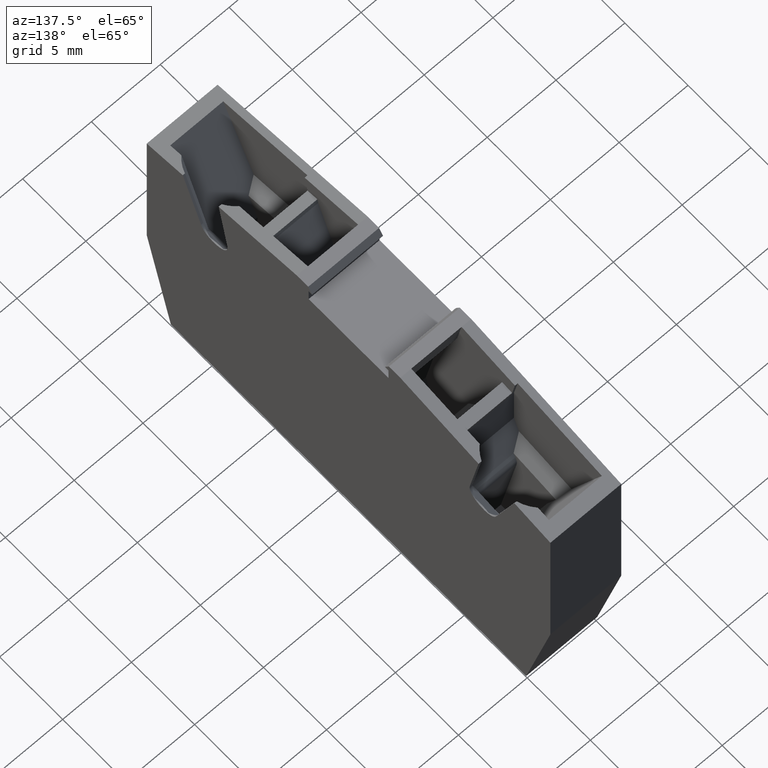
[diagram: clean part render]
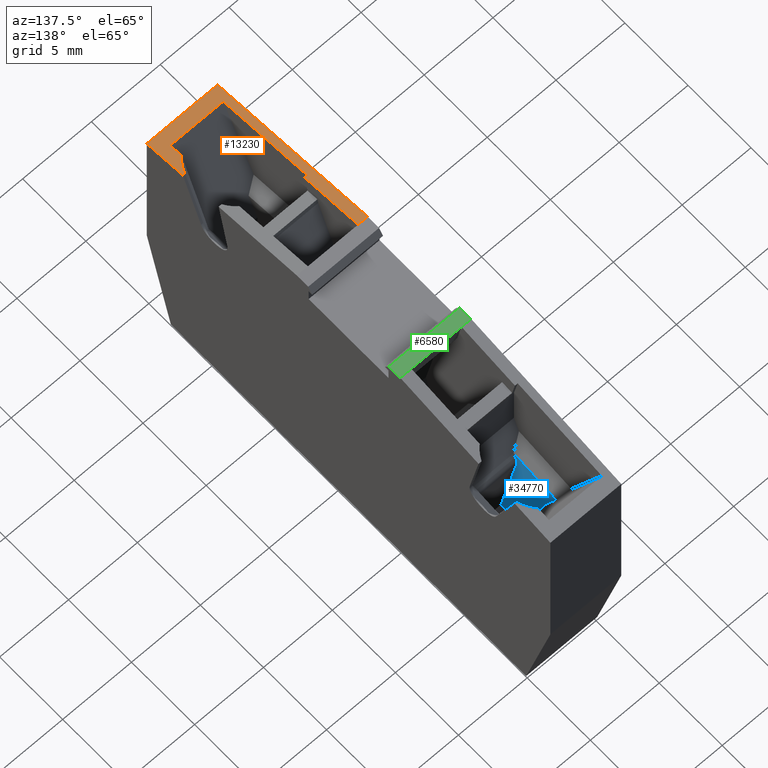
[diagram: same view with three faces highlighted in distinct colors, each labeled with its STEP entity id]
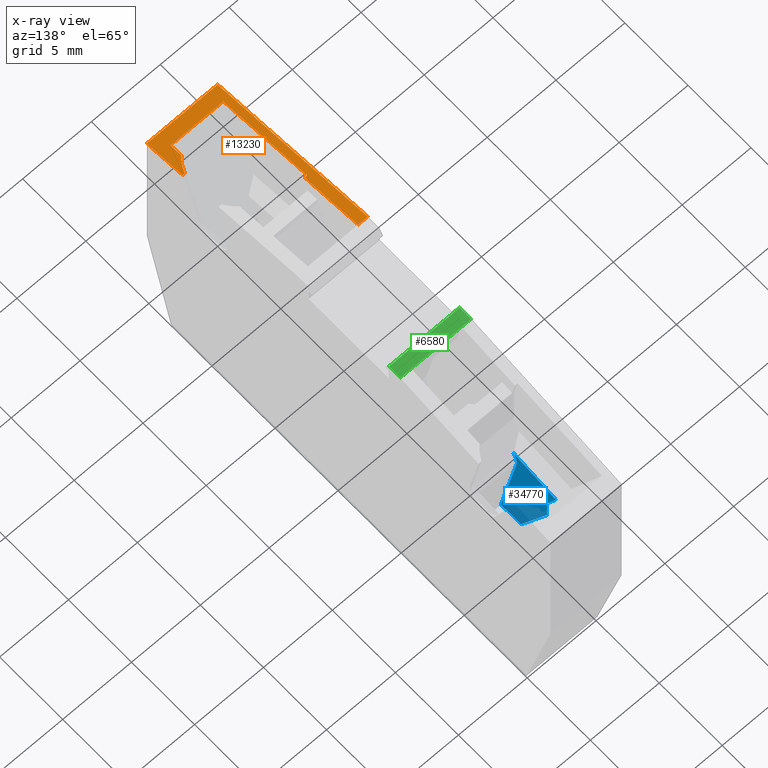
[diagram: x-ray of the same camera — body ghosted, the three highlighted faces saturated]
A machine part, auxiliary view with three faces highlighted in distinct colors.
The next image is the same camera in x-ray (body ghosted, the three faces saturated) — at least one of them is partly hidden behind the body in this view.
Their STEP definitions:

[orange] entity #13230 — the highlighted planar face has unit normal (0, -0.1736, 0.9848).
#200=CARTESIAN_POINT('',(-11.1873617196465,126.685982143697,55.05));
#210=VERTEX_POINT('',#200);
#240=CARTESIAN_POINT('',(-6.72796270864294,75.7148182090425,
55.0499999999999));
#250=DIRECTION('',(-0.0871557427476545,0.996194698091746,
-7.0849665348537E-16));
#260=VECTOR('',#250,1.);
#270=LINE('',#240,#260);
#280=CARTESIAN_POINT('',(-10.9344408285833,123.795083130385,55.05));
#290=VERTEX_POINT('',#280);
#300=EDGE_CURVE('',#290,#210,#270,.T.);
#3350=CARTESIAN_POINT('',(-10.1342086189273,114.648387119662,
60.2000000000001));
#3360=VERTEX_POINT('',#3350);
#3390=CARTESIAN_POINT('',(-6.72796270864292,75.7148182090425,
60.1999999999999));
#3400=DIRECTION('',(0.0871557427476545,-0.996194698091746,
7.0849665348537E-16));
#3410=VECTOR('',#3400,1.);
#3420=LINE('',#3390,#3410);
#3430=CARTESIAN_POINT('',(-11.1873617196465,126.685982143697,
60.2000000000002));
#3440=VERTEX_POINT('',#3430);
#3450=EDGE_CURVE('',#3440,#3360,#3420,.T.);
#4600=CARTESIAN_POINT('',(-11.1873617196467,126.685982143697,
1.19999999999988));
#4610=DIRECTION('',(3.9410446146663E-15,1.05599972183487E-15,1.));
#4620=VECTOR('',#4610,1.);
#4630=LINE('',#4600,#4620);
#4640=EDGE_CURVE('',#210,#3440,#4630,.T.);
#8020=CARTESIAN_POINT('',(-10.5089783127422,118.932024321456,
59.4999999999998));
#8030=VERTEX_POINT('',#8020);
#8060=CARTESIAN_POINT('',(-6.72796270864293,75.7148182090425,
59.4999999999998));
#8070=DIRECTION('',(0.0871557427476545,-0.996194698091746,
7.0849665348537E-16));
#8080=VECTOR('',#8070,1.);
#8090=LINE('',#8060,#8080);
#8100=CARTESIAN_POINT('',(-10.1342086189269,114.648387119657,
59.4999999999998));
#8110=VERTEX_POINT('',#8100);
#8120=EDGE_CURVE('',#8030,#8110,#8090,.T.);
#10600=CARTESIAN_POINT('',(-10.5089783127422,118.932024321456,
59.4999999999999));
#10610=DIRECTION('',(-0.996194698091746,-0.0871557427476545,
4.01808419017143E-15));
#10620=DIRECTION('',(0.0871557427476545,-0.996194698091746,
7.0849665348537E-16));
#10630=AXIS2_PLACEMENT_3D('',#10600,#10610,#10620);
#10640=PLANE('',#10630);
#10650=CARTESIAN_POINT('',(-10.1342086189275,114.648387119661,
1.1999999999999));
#10660=DIRECTION('',(3.9410446146663E-15,1.05599972183487E-15,1.));
#10670=VECTOR('',#10660,1.);
#10680=LINE('',#10650,#10670);
#11170=EDGE_CURVE('',#8110,#3360,#10680,.T.);
#12690=ORIENTED_EDGE('',*,*,#3450,.F.);
#12700=ORIENTED_EDGE('',*,*,#11170,.T.);
#12710=ORIENTED_EDGE('',*,*,#8120,.T.);
#12720=CARTESIAN_POINT('',(-10.5089783127424,118.932024321456,
1.1999999999999));
#12730=DIRECTION('',(3.98324624998555E-15,3.48488890905893E-16,1.));
#12740=VECTOR('',#12730,1.);
#12750=LINE('',#12720,#12740);
#12760=CARTESIAN_POINT('',(-10.5089783127422,118.932024321456,
59.6999999999998));
#12770=VERTEX_POINT('',#12760);
#12780=EDGE_CURVE('',#8030,#12770,#12750,.T.);
#12790=ORIENTED_EDGE('',*,*,#12780,.F.);
#12800=CARTESIAN_POINT('',(-6.72796270864293,75.7148182090427,
59.6999999999999));
#12810=DIRECTION('',(-0.0871557427476546,0.996194698091746,
-7.29475286832201E-19));
#12820=VECTOR('',#12810,1.);
#12830=LINE('',#12800,#12820);
#12840=CARTESIAN_POINT('',(-11.0996822976289,125.68380176416,
59.6999999999998));
#12850=VERTEX_POINT('',#12840);
#12860=EDGE_CURVE('',#12770,#12850,#12830,.T.);
#12870=ORIENTED_EDGE('',*,*,#12860,.F.);
#12880=CARTESIAN_POINT('',(-11.0996822976291,125.68380176416,
1.19999999999989));
#12890=DIRECTION('',(-4.06884333145531E-15,6.29890227257234E-16,-1.));
#12900=VECTOR('',#12890,1.);
#12910=LINE('',#12880,#12900);
#12920=CARTESIAN_POINT('',(-11.0996822976289,125.68380176416,
55.8499999999999));
#12930=VERTEX_POINT('',#12920);
#12940=EDGE_CURVE('',#12850,#12930,#12910,.T.);
#12950=ORIENTED_EDGE('',*,*,#12940,.F.);
#12960=CARTESIAN_POINT('',(-6.72796270864294,75.7148182090427,
55.8499999999999));
#12970=DIRECTION('',(0.0871557427476546,-0.996194698091746,
7.29475286832201E-19));
#12980=VECTOR('',#12970,1.);
#12990=LINE('',#12960,#12980);
#13000=CARTESIAN_POINT('',(-11.0216999677676,124.792459655154,
55.8499999999999));
#13010=VERTEX_POINT('',#13000);
#13020=EDGE_CURVE('',#12930,#13010,#12990,.T.);
#13030=ORIENTED_EDGE('',*,*,#13020,.F.);
#13040=CARTESIAN_POINT('',(-10.8550636016764,122.88779727519,
57.665222820032));
#13050=DIRECTION('',(-0.996194698091746,-0.0871557427476545,
4.01808419017143E-15));
#13060=DIRECTION('',(0.0871557427476545,-0.996194698091746,
2.11714887101291E-14));
#13070=AXIS2_PLACEMENT_3D('',#13040,#13050,#13060);
#13080=ELLIPSE('',#13070,2.65574601904709,2.61539926958888);
#13090=CARTESIAN_POINT('',(-10.9344408285833,123.795083130384,
55.2084248015003));
#13100=VERTEX_POINT('',#13090);
#13110=EDGE_CURVE('',#13010,#13100,#13080,.T.);
#13120=ORIENTED_EDGE('',*,*,#13110,.F.);
#13130=CARTESIAN_POINT('',(-10.9344408285836,123.795083130385,
1.19999999999988));
#13140=DIRECTION('',(-4.06454371880379E-15,3.55601497800828E-16,-1.));
#13150=VECTOR('',#13140,1.);
#13160=LINE('',#13130,#13150);
#13170=EDGE_CURVE('',#13100,#290,#13160,.T.);
#13180=ORIENTED_EDGE('',*,*,#13170,.F.);
#13190=ORIENTED_EDGE('',*,*,#300,.F.);
#13200=ORIENTED_EDGE('',*,*,#4640,.F.);
#13210=EDGE_LOOP('',(#13200,#13190,#13180,#13120,#13030,#12950,#12870,
#12790,#12710,#12700,#12690));
#13220=FACE_OUTER_BOUND('',#13210,.T.);
#13230=ADVANCED_FACE('',(#13220),#10640,.T.);

[blue] entity #34770 — the highlighted planar face has unit normal (1, 0, -0).
#3900=CARTESIAN_POINT('',(0.686710073208695,104.163752801707,
58.9499999999999));
#3910=VERTEX_POINT('',#3900);
#3940=CARTESIAN_POINT('',(24.2231893477134,99.6313391333727,
58.9499999999999));
#3950=DIRECTION('',(0.981958696000331,-0.189095529691556,
-2.84526089171877E-17));
#3960=VECTOR('',#3950,1.);
#3970=LINE('',#3940,#3960);
#3980=CARTESIAN_POINT('',(0.998722756204432,104.103668600807,
58.9499999999999));
#3990=VERTEX_POINT('',#3980);
#4000=EDGE_CURVE('',#3910,#3990,#3970,.T.);
#30930=CARTESIAN_POINT('',(3.50143310468936,102.180971449249,
58.9499999999999));
#30940=VERTEX_POINT('',#30930);
#30970=CARTESIAN_POINT('',(19.9881696181569,115.436647935134,
58.9499999999999));
#30980=DIRECTION('',(-0.779337964931485,-0.626603811364447,
-4.98962710799507E-18));
#30990=VECTOR('',#30980,1.);
#31000=LINE('',#30970,#30990);
#31010=CARTESIAN_POINT('',(2.12670908359226,101.075664958417,
58.9499999999999));
#31020=VERTEX_POINT('',#31010);
#31030=EDGE_CURVE('',#30940,#31020,#31000,.T.);
#34230=CARTESIAN_POINT('',(0.686710073208279,104.163752801702,
58.9499999999999));
#34240=DIRECTION('',(-2.67730117779762E-17,-2.75046693694497E-17,-1.));
#34250=DIRECTION('',(0.422618261740685,-0.906307787036657,
1.36129323302297E-17));
#34260=AXIS2_PLACEMENT_3D('',#34230,#34240,#34250);
#34270=PLANE('',#34260);
#34280=ORIENTED_EDGE('',*,*,#31030,.T.);
#34290=CARTESIAN_POINT('',(22.1976868059763,107.190617529996,
58.9499999999999));
#34300=DIRECTION('',(-0.965925826289073,-0.258819045102505,
3.29794757859485E-17));
#34310=VECTOR('',#34300,1.);
#34320=LINE('',#34290,#34310);
#34330=CARTESIAN_POINT('',(4.92265958745834,102.561787937568,
58.9499999999999));
#34340=VERTEX_POINT('',#34330);
#34350=EDGE_CURVE('',#34340,#30940,#34320,.T.);
#34360=ORIENTED_EDGE('',*,*,#34350,.T.);
#34370=CARTESIAN_POINT('',(20.0392281187329,115.246095016827,
58.9499999999999));
#34380=DIRECTION('',(-0.766044443118989,-0.642787609686527,
9.77354781191315E-18));
#34390=VECTOR('',#34380,1.);
#34400=LINE('',#34370,#34390);
#34410=CARTESIAN_POINT('',(8.67079687790799,105.706848555586,
58.9499999999999));
#34420=VERTEX_POINT('',#34410);
#34430=EDGE_CURVE('',#34420,#34340,#34400,.T.);
#34440=ORIENTED_EDGE('',*,*,#34430,.T.);
#34450=CARTESIAN_POINT('',(-24.5211139574628,229.580746193495,
58.9499999999999));
#34460=DIRECTION('',(-0.258819045102504,0.965925826289073,
-7.49417859959961E-29));
#34470=VECTOR('',#34460,1.);
#34480=LINE('',#34450,#34470);
#34490=CARTESIAN_POINT('',(8.26043366660231,107.238344909736,
58.9499999999999));
#34500=VERTEX_POINT('',#34490);
#34510=EDGE_CURVE('',#34420,#34500,#34480,.T.);
#34520=ORIENTED_EDGE('',*,*,#34510,.F.);
#34530=CARTESIAN_POINT('',(20.6383213287965,113.0102487184,
58.9499999999999));
#34540=DIRECTION('',(0.906307787036657,0.422618261740684,
-2.20107768076554E-17));
#34550=VECTOR('',#34540,1.);
#34560=LINE('',#34530,#34550);
#34570=CARTESIAN_POINT('',(1.73277930592312,104.194449691563,
58.9499999999999));
#34580=VERTEX_POINT('',#34570);
#34590=EDGE_CURVE('',#34580,#34500,#34560,.T.);
#34600=ORIENTED_EDGE('',*,*,#34590,.T.);
#34610=CARTESIAN_POINT('',(1.2256373918343,105.282019036007,
58.9499999999999));
#34620=DIRECTION('',(-2.97055150580502E-17,-2.12158957909182E-17,-1.));
#34630=DIRECTION('',(-1.,1.22402088464924E-14,2.97055150580486E-17));
#34640=AXIS2_PLACEMENT_3D('',#34610,#34620,#34630);
#34650=CIRCLE('',#34640,1.2);
#34660=EDGE_CURVE('',#34580,#3990,#34650,.T.);
#34670=ORIENTED_EDGE('',*,*,#34660,.F.);
#34680=ORIENTED_EDGE('',*,*,#4000,.T.);
#34690=CARTESIAN_POINT('',(13.9526661401404,75.7148182090426,
58.9499999999999));
#34700=DIRECTION('',(0.422618261741274,-0.906307787036382,
-1.46072630971619E-17));
#34710=VECTOR('',#34700,1.);
#34720=LINE('',#34690,#34710);
#34730=EDGE_CURVE('',#3910,#31020,#34720,.T.);
#34740=ORIENTED_EDGE('',*,*,#34730,.F.);
#34750=EDGE_LOOP('',(#34740,#34680,#34670,#34600,#34520,#34440,#34360,
#34280));
#34760=FACE_OUTER_BOUND('',#34750,.T.);
#34770=ADVANCED_FACE('',(#34760),#34270,.T.);

[green] entity #6580 — the highlighted planar face has unit normal (-0, -0, -1).
#1380=CARTESIAN_POINT('',(-8.24581620230558,107.600810676201,55.05));
#1390=VERTEX_POINT('',#1380);
#1420=CARTESIAN_POINT('',(0.298009729134347,75.7148182090425,
55.0499999999999));
#1430=DIRECTION('',(0.258819045102517,-0.965925826289069,
2.44546880618514E-29));
#1440=VECTOR('',#1430,1.);
#1450=LINE('',#1420,#1440);
#1460=CARTESIAN_POINT('',(-8.0118924490866,106.727795344091,55.05));
#1470=VERTEX_POINT('',#1460);
#1480=EDGE_CURVE('',#1390,#1470,#1450,.T.);
#2630=CARTESIAN_POINT('',(-8.01189244908652,106.727795344091,60.2));
#2640=VERTEX_POINT('',#2630);
#2670=CARTESIAN_POINT('',(20.5857341233163,-1.91551947639339E-13,
60.1999999999995));
#2680=DIRECTION('',(-0.258819045102517,0.965925826289069,
4.08006961549743E-15));
#2690=VECTOR('',#2680,1.);
#2700=LINE('',#2670,#2690);
#2710=CARTESIAN_POINT('',(-8.24581620230556,107.600810676201,
60.2000000000001));
#2720=VERTEX_POINT('',#2710);
#2730=EDGE_CURVE('',#2640,#2720,#2700,.T.);
#5920=CARTESIAN_POINT('',(-8.0118924490842,106.727795344086,
59.4999999999999));
#5930=VERTEX_POINT('',#5920);
#5960=CARTESIAN_POINT('',(-8.01189244908672,106.727795344091,
1.1999999999999));
#5970=DIRECTION('',(3.9410446146663E-15,1.05599972183487E-15,1.));
#5980=VECTOR('',#5970,1.);
#5990=LINE('',#5960,#5980);
#6000=EDGE_CURVE('',#5930,#2640,#5990,.T.);
#6320=CARTESIAN_POINT('',(-6.66603341455381,101.704981047389,
55.0499999999999));
#6330=DIRECTION('',(0.965925826289069,0.258819045102517,
-4.08006961549746E-15));
#6340=DIRECTION('',(-0.258819045102517,0.96592582628907,
-2.44546880618514E-29));
#6350=AXIS2_PLACEMENT_3D('',#6320,#6330,#6340);
#6360=PLANE('',#6350);
#6370=ORIENTED_EDGE('',*,*,#2730,.T.);
#6380=ORIENTED_EDGE('',*,*,#6000,.T.);
#6390=CARTESIAN_POINT('',(-8.01189244908566,106.727795344086,
1.19999999999989));
#6400=DIRECTION('',(-9.89186988945812E-15,2.11527825506536E-14,-1.));
#6410=VECTOR('',#6400,1.);
#6420=LINE('',#6390,#6410);
#6430=CARTESIAN_POINT('',(-8.01189244908511,106.727795344085,
55.8499999999999));
#6440=VERTEX_POINT('',#6430);
#6450=EDGE_CURVE('',#5930,#6440,#6420,.T.);
#6460=ORIENTED_EDGE('',*,*,#6450,.F.);
#6470=EDGE_CURVE('',#1470,#6440,#5990,.T.);
#6480=ORIENTED_EDGE('',*,*,#6470,.T.);
#6490=ORIENTED_EDGE('',*,*,#1480,.T.);
#6500=CARTESIAN_POINT('',(-8.24581620230588,107.600810676201,
1.19999999999989));
#6510=DIRECTION('',(5.33443603384167E-15,-4.14420784935817E-15,1.));
#6520=VECTOR('',#6510,1.);
#6530=LINE('',#6500,#6520);
#6540=EDGE_CURVE('',#1390,#2720,#6530,.T.);
#6550=ORIENTED_EDGE('',*,*,#6540,.F.);
#6560=EDGE_LOOP('',(#6550,#6490,#6480,#6460,#6380,#6370));
#6570=FACE_OUTER_BOUND('',#6560,.T.);
#6580=ADVANCED_FACE('',(#6570),#6360,.F.);